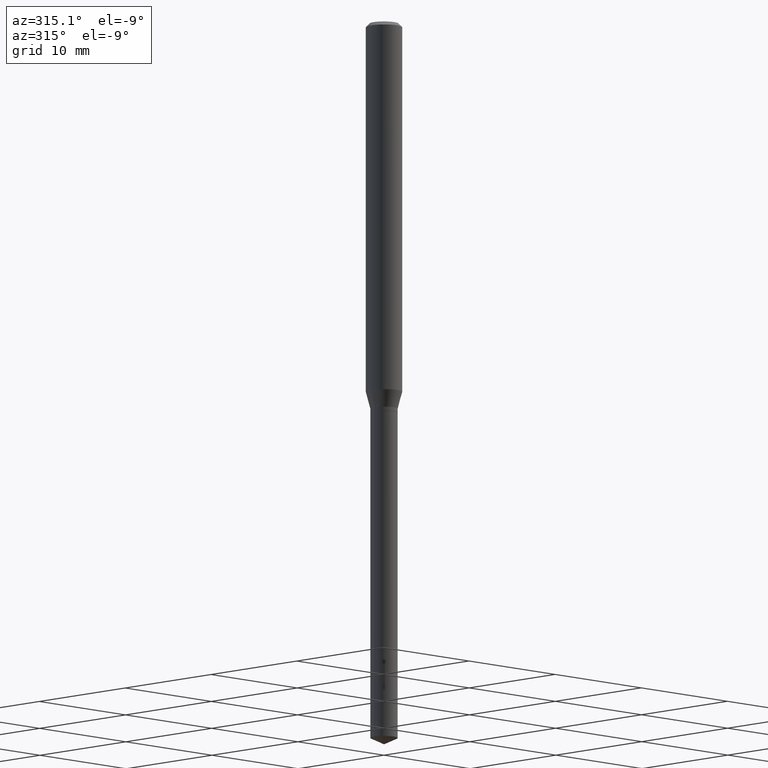
[diagram: clean part render]
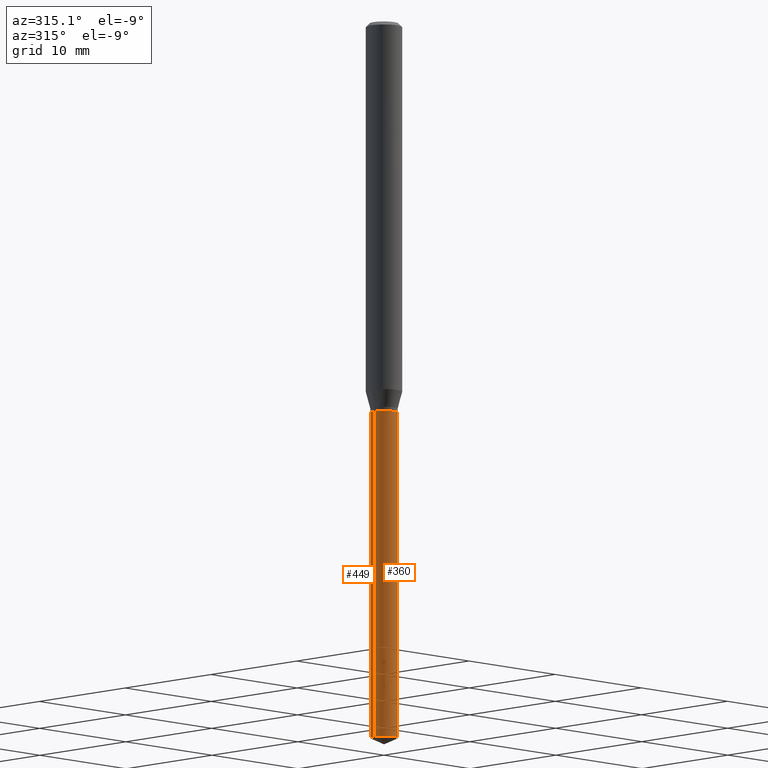
[diagram: same view with one multi-face feature highlighted, each face labeled with its STEP entity id]
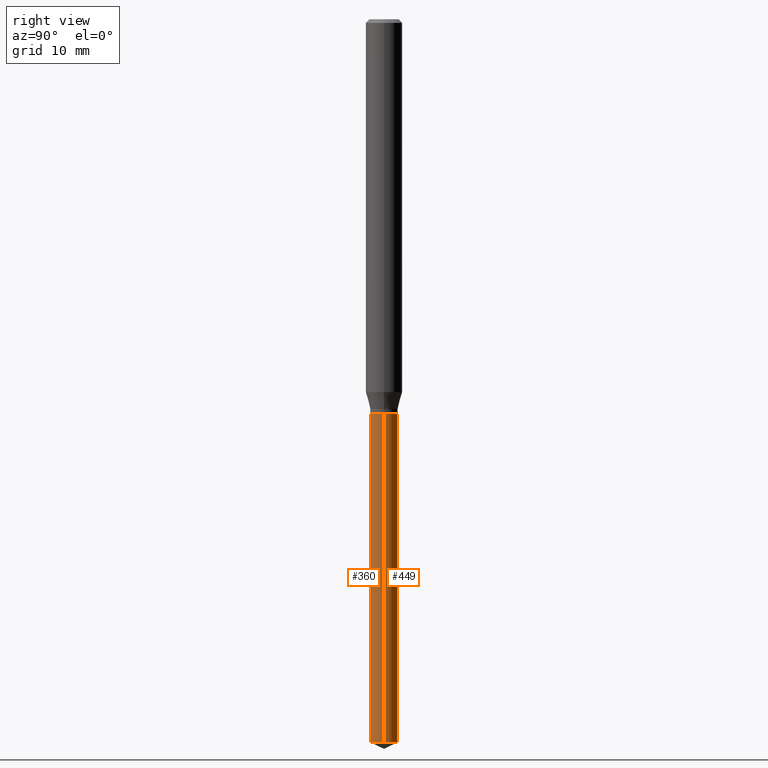
[diagram: same view with one multi-face feature highlighted, each face labeled with its STEP entity id]
A machine part, auxiliary view. The highlighted faces form ONE feature: a constant-radius fillet chain: 2 tangent blend faces with common blend radius 1.1252 mm. The faces share edges in the B-rep.
A second angle (right view) of the same feature is appended — it is thin or edge-on in the first view.
Their STEP definitions:
[1] entity #360 (Cylinder):
#4 = AXIS2_PLACEMENT_3D ( 'NONE', #166, #46, #12 ) ;
#12 = DIRECTION ( 'NONE',  ( 1.000000000000000000, -6.982962677686269077E-15, 0.000000000000000000 ) ) ;
#26 = CARTESIAN_POINT ( 'NONE',  ( 0.04429999999999999910, -4.762380546182051062E-15, -1.275400000000000311 ) ) ;
#46 = DIRECTION ( 'NONE',  ( -2.445468806185136597E-29, 3.491481338843145583E-15, 1.000000000000000000 ) ) ;
#49 = CARTESIAN_POINT ( 'NONE',  ( 3.118950915408523626E-29, -4.453035299560548797E-15, -1.275400000000000311 ) ) ;
#66 = CARTESIAN_POINT ( 'NONE',  ( 0.04430000000000000604, -8.484099140212286517E-15, -2.341342570743733642 ) ) ;
#72 = VERTEX_POINT ( 'NONE', #366 ) ;
#73 = VECTOR ( 'NONE', #338, 39.37007874015748143 ) ;
#92 = VERTEX_POINT ( 'NONE', #66 ) ;
#124 = EDGE_LOOP ( 'NONE', ( #416, #385, #278, #126 ) ) ;
#126 = ORIENTED_EDGE ( 'NONE', *, *, #244, .F. ) ;
#128 = DIRECTION ( 'NONE',  ( -2.445468806185136597E-29, 3.491481338843145583E-15, 1.000000000000000000 ) ) ;
#130 = LINE ( 'NONE', #197, #136 ) ;
#132 = VERTEX_POINT ( 'NONE', #26 ) ;
#136 = VECTOR ( 'NONE', #389, 39.37007874015748143 ) ;
#137 = EDGE_CURVE ( 'NONE', #72, #353, #215, .T. ) ;
#157 = DIRECTION ( 'NONE',  ( 1.000000000000000000, -6.982962677686269077E-15, 0.000000000000000000 ) ) ;
#166 = CARTESIAN_POINT ( 'NONE',  ( 3.118950915408523626E-29, -4.453035299560548797E-15, -1.275400000000000311 ) ) ;
#169 = CYLINDRICAL_SURFACE ( 'NONE', #4, 0.04429999999999999910 ) ;
#173 = CIRCLE ( 'NONE', #436, 0.04429999999999999910 ) ;
#194 = CARTESIAN_POINT ( 'NONE',  ( -0.04429999999999999910, -5.999124164633942099E-15, -1.275400000000000311 ) ) ;
#197 = CARTESIAN_POINT ( 'NONE',  ( 0.04429999999999999910, -4.762380546182051062E-15, -1.275400000000000311 ) ) ;
#203 = AXIS2_PLACEMENT_3D ( 'NONE', #49, #128, #430 ) ;
#215 = LINE ( 'NONE', #331, #73 ) ;
#233 = EDGE_CURVE ( 'NONE', #72, #92, #173, .T. ) ;
#244 = EDGE_CURVE ( 'NONE', #353, #132, #417, .T. ) ;
#278 = ORIENTED_EDGE ( 'NONE', *, *, #329, .T. ) ;
#329 = EDGE_CURVE ( 'NONE', #92, #132, #130, .T. ) ;
#331 = CARTESIAN_POINT ( 'NONE',  ( -0.04429999999999999910, -4.138264867618825161E-15, -1.275400000000000311 ) ) ;
#338 = DIRECTION ( 'NONE',  ( -2.445468806185136877E-29, 3.491481338843145188E-15, 1.000000000000000000 ) ) ;
#353 = VERTEX_POINT ( 'NONE', #194 ) ;
#356 = DIRECTION ( 'NONE',  ( -2.445468806185136597E-29, 3.491481338843145583E-15, 1.000000000000000000 ) ) ;
#360 = ADVANCED_FACE ( 'NONE', ( #472 ), #169, .T. ) ;
#366 = CARTESIAN_POINT ( 'NONE',  ( -0.04430000000000000604, -7.859983461649060616E-15, -2.341342570743733642 ) ) ;
#385 = ORIENTED_EDGE ( 'NONE', *, *, #233, .T. ) ;
#389 = DIRECTION ( 'NONE',  ( -2.445468806185136877E-29, 3.491481338843145188E-15, 1.000000000000000000 ) ) ;
#416 = ORIENTED_EDGE ( 'NONE', *, *, #137, .F. ) ;
#417 = CIRCLE ( 'NONE', #203, 0.04429999999999999910 ) ;
#430 = DIRECTION ( 'NONE',  ( 1.000000000000000000, -6.982962677686269077E-15, 0.000000000000000000 ) ) ;
#436 = AXIS2_PLACEMENT_3D ( 'NONE', #467, #356, #157 ) ;
#467 = CARTESIAN_POINT ( 'NONE',  ( 5.725680221347117002E-29, -8.174753893590783463E-15, -2.341342570743733642 ) ) ;
#472 = FACE_OUTER_BOUND ( 'NONE', #124, .T. ) ;
[2] entity #449 (Cylinder):
#26 = CARTESIAN_POINT ( 'NONE',  ( 0.04429999999999999910, -4.762380546182051062E-15, -1.275400000000000311 ) ) ;
#66 = CARTESIAN_POINT ( 'NONE',  ( 0.04430000000000000604, -8.484099140212286517E-15, -2.341342570743733642 ) ) ;
#67 = DIRECTION ( 'NONE',  ( 1.000000000000000000, -6.982962677686269077E-15, 0.000000000000000000 ) ) ;
#72 = VERTEX_POINT ( 'NONE', #366 ) ;
#73 = VECTOR ( 'NONE', #338, 39.37007874015748143 ) ;
#86 = ORIENTED_EDGE ( 'NONE', *, *, #381, .T. ) ;
#92 = VERTEX_POINT ( 'NONE', #66 ) ;
#106 = FACE_OUTER_BOUND ( 'NONE', #200, .T. ) ;
#115 = CARTESIAN_POINT ( 'NONE',  ( 3.118950915408523626E-29, -4.453035299560548797E-15, -1.275400000000000311 ) ) ;
#130 = LINE ( 'NONE', #197, #136 ) ;
#132 = VERTEX_POINT ( 'NONE', #26 ) ;
#136 = VECTOR ( 'NONE', #389, 39.37007874015748143 ) ;
#137 = EDGE_CURVE ( 'NONE', #72, #353, #215, .T. ) ;
#151 = DIRECTION ( 'NONE',  ( 1.000000000000000000, -6.982962677686269077E-15, 0.000000000000000000 ) ) ;
#160 = ORIENTED_EDGE ( 'NONE', *, *, #329, .F. ) ;
#161 = DIRECTION ( 'NONE',  ( -2.445468806185136597E-29, 3.491481338843145583E-15, 1.000000000000000000 ) ) ;
#194 = CARTESIAN_POINT ( 'NONE',  ( -0.04429999999999999910, -5.999124164633942099E-15, -1.275400000000000311 ) ) ;
#197 = CARTESIAN_POINT ( 'NONE',  ( 0.04429999999999999910, -4.762380546182051062E-15, -1.275400000000000311 ) ) ;
#200 = EDGE_LOOP ( 'NONE', ( #86, #273, #237, #160 ) ) ;
#215 = LINE ( 'NONE', #331, #73 ) ;
#237 = ORIENTED_EDGE ( 'NONE', *, *, #441, .F. ) ;
#241 = CIRCLE ( 'NONE', #437, 0.04429999999999999910 ) ;
#263 = CARTESIAN_POINT ( 'NONE',  ( 3.118950915408523626E-29, -4.453035299560548797E-15, -1.275400000000000311 ) ) ;
#273 = ORIENTED_EDGE ( 'NONE', *, *, #137, .T. ) ;
#279 = DIRECTION ( 'NONE',  ( 1.000000000000000000, -6.982962677686269077E-15, 0.000000000000000000 ) ) ;
#289 = DIRECTION ( 'NONE',  ( -2.445468806185136597E-29, 3.491481338843145583E-15, 1.000000000000000000 ) ) ;
#305 = CIRCLE ( 'NONE', #378, 0.04429999999999999910 ) ;
#329 = EDGE_CURVE ( 'NONE', #92, #132, #130, .T. ) ;
#331 = CARTESIAN_POINT ( 'NONE',  ( -0.04429999999999999910, -4.138264867618825161E-15, -1.275400000000000311 ) ) ;
#338 = DIRECTION ( 'NONE',  ( -2.445468806185136877E-29, 3.491481338843145188E-15, 1.000000000000000000 ) ) ;
#353 = VERTEX_POINT ( 'NONE', #194 ) ;
#366 = CARTESIAN_POINT ( 'NONE',  ( -0.04430000000000000604, -7.859983461649060616E-15, -2.341342570743733642 ) ) ;
#378 = AXIS2_PLACEMENT_3D ( 'NONE', #461, #161, #279 ) ;
#381 = EDGE_CURVE ( 'NONE', #92, #72, #305, .T. ) ;
#389 = DIRECTION ( 'NONE',  ( -2.445468806185136877E-29, 3.491481338843145188E-15, 1.000000000000000000 ) ) ;
#398 = AXIS2_PLACEMENT_3D ( 'NONE', #263, #479, #151 ) ;
#400 = CYLINDRICAL_SURFACE ( 'NONE', #398, 0.04429999999999999910 ) ;
#437 = AXIS2_PLACEMENT_3D ( 'NONE', #115, #289, #67 ) ;
#441 = EDGE_CURVE ( 'NONE', #132, #353, #241, .T. ) ;
#449 = ADVANCED_FACE ( 'NONE', ( #106 ), #400, .T. ) ;
#461 = CARTESIAN_POINT ( 'NONE',  ( 5.725680221347117002E-29, -8.174753893590783463E-15, -2.341342570743733642 ) ) ;
#479 = DIRECTION ( 'NONE',  ( -2.445468806185136597E-29, 3.491481338843145583E-15, 1.000000000000000000 ) ) ;